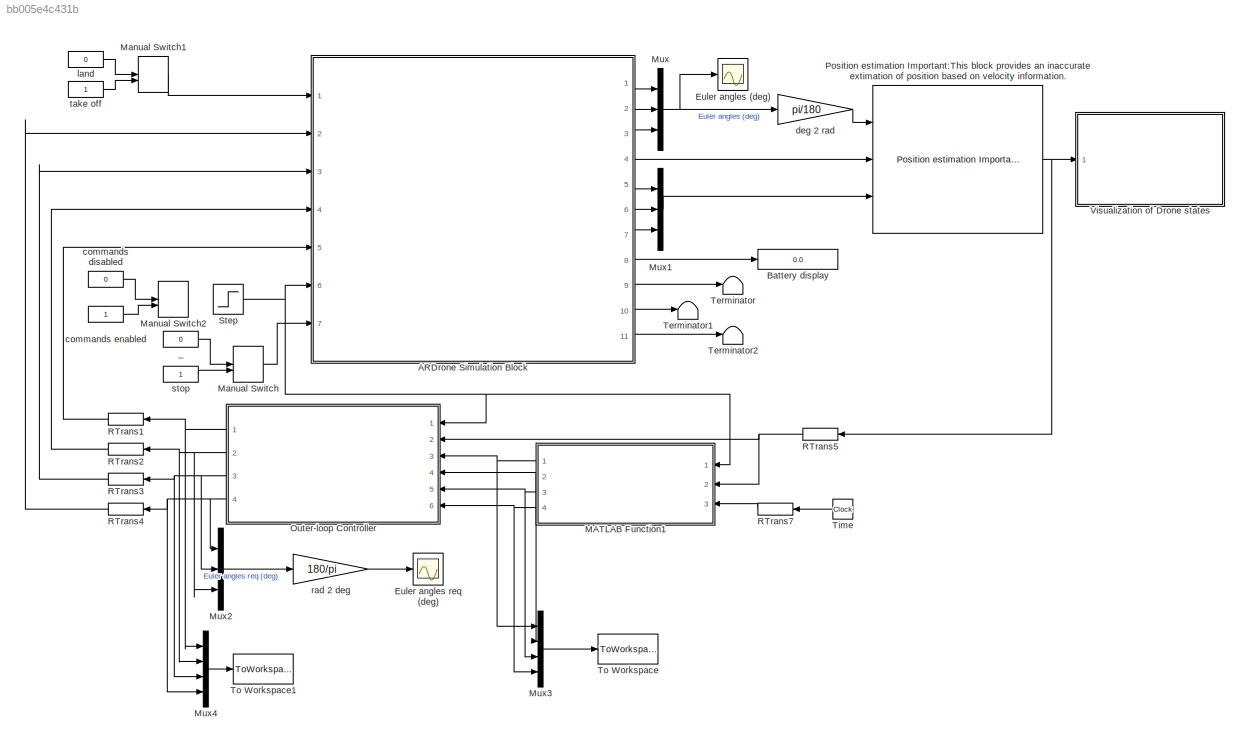
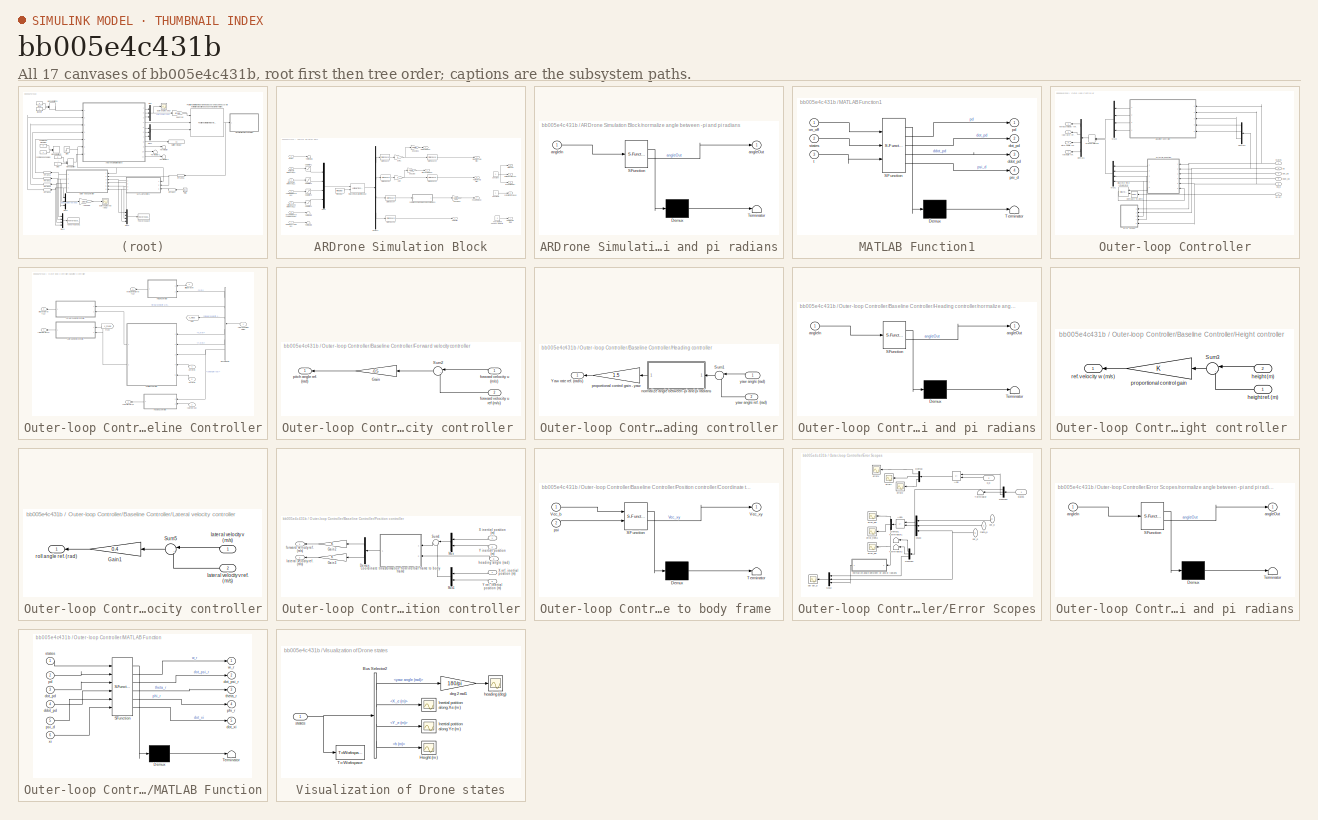
[diagram: thumbnail index - all 17 canvases of the model, root first then tree order]
MODEL slx_bb005e4c431b
KIND model
CONFIG AbsTol = auto
CONFIG EnableMultiTasking = on
CONFIG FixedStep = simDT
CONFIG MaxStep = auto
CONFIG MinStep = auto
CONFIG RelTol = 1e-3
CONFIG SampleTimeConstraint = Unconstrained
CONFIG Solver = ode1
CONFIG SolverName = ode1
CONFIG StartTime = 0.0
CONFIG StopTime = 200
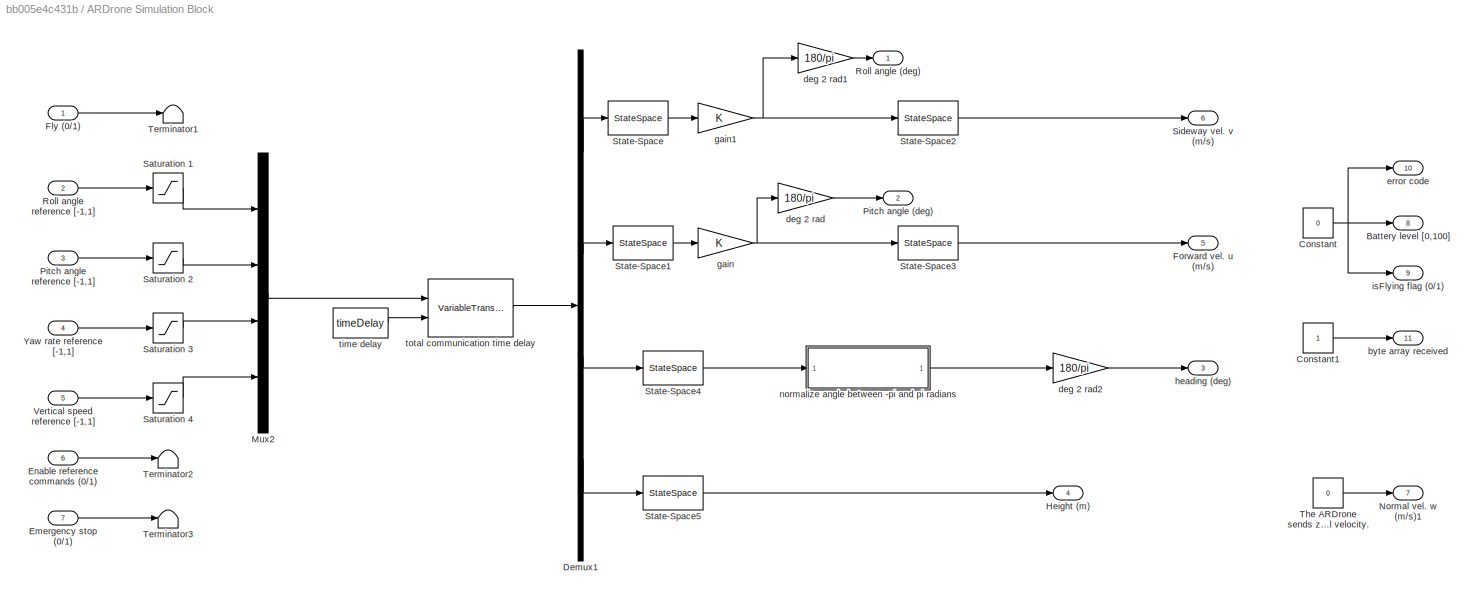
BLOCK [SubSystem] ARDrone Simulation Block
  AncestorBlock = ARBlocks/ARDrone Simulation Block
  Ports = [7, 11]
  RequestExecContextInheritance = off
BLOCK [Outport] ARDrone Simulation Block/Battery level [0,100]
  Port = 8
  VectorParamsAs1DForOutWhenUnconnected = off
BLOCK [Constant] ARDrone Simulation Block/Constant
  Value = 0
BLOCK [Constant] ARDrone Simulation Block/Constant1
BLOCK [Demux] ARDrone Simulation Block/Demux1
  Outputs = [1,1,1,1]
  Ports = [1, 4]
BLOCK [Inport] ARDrone Simulation Block/Emergency stop (0//1)
  Port = 7
BLOCK [Inport] ARDrone Simulation Block/Enable reference commands (0//1)
  Port = 6
BLOCK [Inport] ARDrone Simulation Block/Fly (0//1)
BLOCK [Outport] ARDrone Simulation Block/Forward vel. u (m//s)
  Port = 5
  VectorParamsAs1DForOutWhenUnconnected = off
BLOCK [Outport] ARDrone Simulation Block/Height (m)
  Port = 4
  VectorParamsAs1DForOutWhenUnconnected = off
BLOCK [Mux] ARDrone Simulation Block/Mux2
  DisplayOption = bar
  Inputs = [1,1,1,1]
  Ports = [4, 1]
BLOCK [Outport] ARDrone Simulation Block/Normal vel. w (m//s)1
  Port = 7
  VectorParamsAs1DForOutWhenUnconnected = off
BLOCK [Outport] ARDrone Simulation Block/Pitch angle (deg)
  Port = 2
  VectorParamsAs1DForOutWhenUnconnected = off
BLOCK [Inport] ARDrone Simulation Block/Pitch angle reference [-1,1]
  Port = 3
BLOCK [Outport] ARDrone Simulation Block/Roll angle (deg)
  VectorParamsAs1DForOutWhenUnconnected = off
BLOCK [Inport] ARDrone Simulation Block/Roll angle reference [-1,1]
  Port = 2
BLOCK [Saturate] ARDrone Simulation Block/Saturation 1
  LowerLimit = -1
  UpperLimit = 1
BLOCK [Saturate] ARDrone Simulation Block/Saturation 2
  LowerLimit = -1
  UpperLimit = 1
BLOCK [Saturate] ARDrone Simulation Block/Saturation 3
  LowerLimit = -1
  UpperLimit = 1
BLOCK [Saturate] ARDrone Simulation Block/Saturation 4
  LowerLimit = -1
  UpperLimit = 1
BLOCK [Outport] ARDrone Simulation Block/Sideway vel. v (m//s)
  Port = 6
  VectorParamsAs1DForOutWhenUnconnected = off
BLOCK [StateSpace] ARDrone Simulation Block/State-Space
  A = ssRoll.a
  B = ssRoll.b
  C = ssRoll.c
  D = ssRoll.d
  InitialCondition = 0
  Ports = [1, 1]
BLOCK [StateSpace] ARDrone Simulation Block/State-Space1
  A = ssPitch.a
  B = ssPitch.b
  C = ssPitch.c
  D = ssPitch.d
  InitialCondition = 0
  Ports = [1, 1]
BLOCK [StateSpace] ARDrone Simulation Block/State-Space2
  A = ssRoll2V.a
  B = ssRoll2V.b
  C = ssRoll2V.c
  D = ssRoll2V.d
  InitialCondition = 0
  Ports = [1, 1]
BLOCK [StateSpace] ARDrone Simulation Block/State-Space3
  A = ssPitch2U.a
  B = ssPitch2U.b
  C = ssPitch2U.c
  D = ssPitch2U.d
  InitialCondition = 0
  Ports = [1, 1]
BLOCK [StateSpace] ARDrone Simulation Block/State-Space4
  A = ssYaw.a
  B = ssYaw.b
  C = ssYaw.c
  D = ssYaw.d
  InitialCondition = 0
  Ports = [1, 1]
BLOCK [StateSpace] ARDrone Simulation Block/State-Space5
  A = ssH.a
  B = ssH.b
  C = ssH.c
  D = ssH.d
  InitialCondition = 0
  Ports = [1, 1]
BLOCK [Terminator] ARDrone Simulation Block/Terminator1
BLOCK [Terminator] ARDrone Simulation Block/Terminator2
BLOCK [Terminator] ARDrone Simulation Block/Terminator3
BLOCK [Constant] ARDrone Simulation Block/The ARDrone sends zero for the vertical velocity. 
  Value = 0
BLOCK [Inport] ARDrone Simulation Block/Vertical speed reference [-1,1]
  Port = 5
BLOCK [Inport] ARDrone Simulation Block/Yaw rate reference [-1,1]
  Port = 4
BLOCK [Outport] ARDrone Simulation Block/byte array received
  Port = 11
  VectorParamsAs1DForOutWhenUnconnected = off
BLOCK [Gain] ARDrone Simulation Block/deg 2 rad
  Gain = 180/pi
BLOCK [Gain] ARDrone Simulation Block/deg 2 rad1
  Gain = 180/pi
BLOCK [Gain] ARDrone Simulation Block/deg 2 rad2
  Gain = 180/pi
BLOCK [Outport] ARDrone Simulation Block/error code
  Port = 10
  VectorParamsAs1DForOutWhenUnconnected = off
BLOCK [Gain] ARDrone Simulation Block/gain
BLOCK [Gain] ARDrone Simulation Block/gain1
BLOCK [Outport] ARDrone Simulation Block/heading  (deg)
  Port = 3
  VectorParamsAs1DForOutWhenUnconnected = off
BLOCK [Outport] ARDrone Simulation Block/isFlying flag (0//1)
  Port = 9
  VectorParamsAs1DForOutWhenUnconnected = off
BLOCK [SubSystem] ARDrone Simulation Block/normalize angle between -pi and pi radians
  ErrorFcn = Stateflow.Translate.translate
  NameLocation = top
  PermitHierarchicalResolution = ExplicitOnly
  Ports = [1, 1]
  RequestExecContextInheritance = off
  SFBlockType = MATLAB Function
  TreatAsAtomicUnit = on
BLOCK [Demux] ARDrone Simulation Block/normalize angle between -pi and pi radians/ Demux 
  Outputs = 1
  Ports = [1, 1]
BLOCK [S-Function] ARDrone Simulation Block/normalize angle between -pi and pi radians/ SFunction 
  EnableBusSupport = on
  FunctionName = sf_sfun
  PortCounts = [1 2]
  Ports = [1, 2]
  SFcnIsStateOwnerBlock = off
  SFunctionDeploymentMode = off
  Tag = Stateflow S-Function 5
BLOCK [Terminator] ARDrone Simulation Block/normalize angle between -pi and pi radians/ Terminator 
BLOCK [Inport] ARDrone Simulation Block/normalize angle between -pi and pi radians/angleIn
BLOCK [Outport] ARDrone Simulation Block/normalize angle between -pi and pi radians/angleOut
  VectorParamsAs1DForOutWhenUnconnected = off
BLOCK [Constant] ARDrone Simulation Block/time delay
  Value = timeDelay
BLOCK [VariableTransportDelay] ARDrone Simulation Block/total communication time delay
  InitialOutput = [0 0 0 0]
  MaximumDelay = 10
  MaximumPoints = 4096
  Ports = [2, 1]
BLOCK [Display] Battery display
  Decimation = 1
  Ports = [1]
BLOCK [Scope] Euler angles (deg)
  Floating = off
  NumInputPorts = 1
  Ports = [1]
  ScopeSpecificationString = Simulink.scopes.TimeScopeBlockCfg('CurrentConfiguration', extmgr.ConfigurationSet(extmgr.Configuration('Core','General UI',true),extmgr.Configuration('Core','Source UI',true),extmgr.Configuration('Sources','WiredSimulink',true,'DataLoggingSaveFormat','StructureWithTime','DataLoggingMaxPoints','500000','DataLoggingLimitDataPoints',true,'DataLoggingDecimation','1','DataLoggingDecimateData',true),ext...<+1845ch>
BLOCK [Scope] Euler angles req (deg)
  Floating = off
  NumInputPorts = 1
  Ports = [1]
  ScopeSpecificationString = Simulink.scopes.TimeScopeBlockCfg('CurrentConfiguration', extmgr.ConfigurationSet(extmgr.Configuration('Core','General UI',true),extmgr.Configuration('Core','Source UI',true),extmgr.Configuration('Sources','WiredSimulink',true,'DataLoggingSaveFormat','StructureWithTime','DataLoggingMaxPoints','500000','DataLoggingLimitDataPoints',true,'DataLoggingDecimation','1','DataLoggingDecimateData',true,'Dat...<+1856ch>
BLOCK [SubSystem] MATLAB Function1
  ErrorFcn = Stateflow.Translate.translate
  NameLocation = top
  PermitHierarchicalResolution = ExplicitOnly
  Ports = [3, 4]
  RequestExecContextInheritance = off
  SFBlockType = MATLAB Function
  SystemSampleTime = FMS.Ts
  TreatAsAtomicUnit = on
BLOCK [Demux] MATLAB Function1/ Demux 
  Outputs = 1
  Ports = [1, 1]
BLOCK [S-Function] MATLAB Function1/ SFunction 
  EnableBusSupport = on
  FunctionName = sf_sfun
  PortCounts = [3 5]
  Ports = [3, 5]
  SFcnIsStateOwnerBlock = off
  SFunctionDeploymentMode = off
  Tag = Stateflow S-Function 1
BLOCK [Terminator] MATLAB Function1/ Terminator 
BLOCK [Outport] MATLAB Function1/ddot_pd
  Port = 3
  VectorParamsAs1DForOutWhenUnconnected = off
BLOCK [Outport] MATLAB Function1/dot_pd
  Port = 2
  VectorParamsAs1DForOutWhenUnconnected = off
BLOCK [Inport] MATLAB Function1/on_off
BLOCK [Outport] MATLAB Function1/pd
  VectorParamsAs1DForOutWhenUnconnected = off
BLOCK [Outport] MATLAB Function1/psi_d
  Port = 4
  VectorParamsAs1DForOutWhenUnconnected = off
BLOCK [Inport] MATLAB Function1/states
  Port = 2
BLOCK [Inport] MATLAB Function1/t
  Port = 3
BLOCK [ManualSwitch] Manual Switch
BLOCK [ManualSwitch] Manual Switch1
  CurrentSetting = 0
BLOCK [ManualSwitch] Manual Switch2
  CurrentSetting = 0
  NameLocation = top
BLOCK [Mux] Mux
  DisplayOption = bar
  Inputs = 3
  Ports = [3, 1]
BLOCK [Mux] Mux1
  DisplayOption = bar
  Inputs = 3
  Ports = [3, 1]
BLOCK [Mux] Mux2
  DisplayOption = bar
  Inputs = 3
  Ports = [3, 1]
BLOCK [Mux] Mux3
  DisplayOption = bar
  Ports = [4, 1]
BLOCK [Mux] Mux4
  DisplayOption = bar
  Ports = [4, 1]
BLOCK [SubSystem] Outer-loop Controller
  Ports = [6, 4]
  RequestExecContextInheritance = off
BLOCK [SubSystem] Outer-loop Controller/Baseline Controller
  AncestorBlock = ARBlocks/Baseline Controller
  Ports = [5, 4]
  RequestExecContextInheritance = off
BLOCK [Inport] Outer-loop Controller/Baseline Controller/ARDrone states  states 
BLOCK [BusSelector] Outer-loop Controller/Baseline Controller/Bus Selector
  NameLocation = top
  OutputSignals = h (m),forward velocity- u (m/s),sideward velocity - v (m/s),X_e (m),Y_e (m),yaw angle (rad)
  Ports = [1, 6]
BLOCK [SubSystem] Outer-loop Controller/Baseline Controller/Forward velocity controller 
  NameLocation = top
  Ports = [2, 1]
  RequestExecContextInheritance = off
BLOCK [Gain] Outer-loop Controller/Baseline Controller/Forward velocity controller /Gain
  Gain = -0.5
  NameLocation = top
BLOCK [Sum] Outer-loop Controller/Baseline Controller/Forward velocity controller /Sum2
  Inputs = |-+
  NameLocation = top
  Ports = [2, 1]
BLOCK [Inport] Outer-loop Controller/Baseline Controller/Forward velocity controller /forward velocity u (m//s)
BLOCK [Inport] Outer-loop Controller/Baseline Controller/Forward velocity controller /forward velocity u ref (m//s)
  Port = 2
BLOCK [Outport] Outer-loop Controller/Baseline Controller/Forward velocity controller /pitch angle ref. (rad)
  VectorParamsAs1DForOutWhenUnconnected = off
BLOCK [From] Outer-loop Controller/Baseline Controller/From
  GotoTag = v_meas
  NameLocation = top
BLOCK [Goto] Outer-loop Controller/Baseline Controller/Goto
  GotoTag = v_meas
  NameLocation = top
BLOCK [SubSystem] Outer-loop Controller/Baseline Controller/Heading controller
  NameLocation = top
  Ports = [2, 1]
  RequestExecContextInheritance = off
BLOCK [Sum] Outer-loop Controller/Baseline Controller/Heading controller/Sum1
  Inputs = |-+
  NameLocation = top
  Ports = [2, 1]
BLOCK [Outport] Outer-loop Controller/Baseline Controller/Heading controller/Yaw rate ref. (rad//s)
  VectorParamsAs1DForOutWhenUnconnected = off
BLOCK [SubSystem] Outer-loop Controller/Baseline Controller/Heading controller/normalize angle between -pi and pi radians
  ErrorFcn = Stateflow.Translate.translate
  NameLocation = top
  PermitHierarchicalResolution = ExplicitOnly
  Ports = [1, 1]
  RequestExecContextInheritance = off
  SFBlockType = MATLAB Function
  TreatAsAtomicUnit = on
BLOCK [Demux] Outer-loop Controller/Baseline Controller/Heading controller/normalize angle between -pi and pi radians/ Demux 
  Outputs = 1
  Ports = [1, 1]
BLOCK [S-Function] Outer-loop Controller/Baseline Controller/Heading controller/normalize angle between -pi and pi radians/ SFunction 
  EnableBusSupport = on
  FunctionName = sf_sfun
  PortCounts = [1 2]
  Ports = [1, 2]
  SFcnIsStateOwnerBlock = off
  SFunctionDeploymentMode = off
  Tag = Stateflow S-Function 4
BLOCK [Terminator] Outer-loop Controller/Baseline Controller/Heading controller/normalize angle between -pi and pi radians/ Terminator 
BLOCK [Inport] Outer-loop Controller/Baseline Controller/Heading controller/normalize angle between -pi and pi radians/angleIn
BLOCK [Outport] Outer-loop Controller/Baseline Controller/Heading controller/normalize angle between -pi and pi radians/angleOut
  VectorParamsAs1DForOutWhenUnconnected = off
BLOCK [Gain] Outer-loop Controller/Baseline Controller/Heading controller/proportional control gain - yaw
  Gain = 1.5
  NameLocation = top
BLOCK [Inport] Outer-loop Controller/Baseline Controller/Heading controller/yaw angle (rad)
BLOCK [Inport] Outer-loop Controller/Baseline Controller/Heading controller/yaw angle ref. (rad)
  Port = 2
BLOCK [SubSystem] Outer-loop Controller/Baseline Controller/Height controller 
  NameLocation = top
  Ports = [2, 1]
  RequestExecContextInheritance = off
BLOCK [Sum] Outer-loop Controller/Baseline Controller/Height controller /Sum3
  Inputs = |-+
  NameLocation = top
  Ports = [2, 1]
BLOCK [Inport] Outer-loop Controller/Baseline Controller/Height controller /height (m)
  Port = 2
BLOCK [Inport] Outer-loop Controller/Baseline Controller/Height controller /height ref. (m)
BLOCK [Gain] Outer-loop Controller/Baseline Controller/Height controller /proportional control gain
  NameLocation = top
BLOCK [Outport] Outer-loop Controller/Baseline Controller/Height controller /ref. velocity w (m//s)
  VectorParamsAs1DForOutWhenUnconnected = off
BLOCK [SubSystem] Outer-loop Controller/Baseline Controller/Lateral velocity controller
  Ports = [2, 1]
  RequestExecContextInheritance = off
BLOCK [Gain] Outer-loop Controller/Baseline Controller/Lateral velocity controller/Gain1
  Gain = 0.4
  NameLocation = top
BLOCK [Sum] Outer-loop Controller/Baseline Controller/Lateral velocity controller/Sum5
  Inputs = |-+
  NameLocation = top
  Ports = [2, 1]
BLOCK [Inport] Outer-loop Controller/Baseline Controller/Lateral velocity controller/lateral velocity v (m//s)
BLOCK [Inport] Outer-loop Controller/Baseline Controller/Lateral velocity controller/lateral velocity v ref. (m//s)
  Port = 2
BLOCK [Outport] Outer-loop Controller/Baseline Controller/Lateral velocity controller/roll angle ref. (rad)
  VectorParamsAs1DForOutWhenUnconnected = off
BLOCK [SubSystem] Outer-loop Controller/Baseline Controller/Position controller
  NameLocation = top
  Ports = [5, 2]
  RequestExecContextInheritance = off
BLOCK [SubSystem] Outer-loop Controller/Baseline Controller/Position controller/Coordinate trnasformation from inertial frame to body frame 
  ErrorFcn = Stateflow.Translate.translate
  NameLocation = top
  PermitHierarchicalResolution = ExplicitOnly
  Ports = [2, 1]
  RequestExecContextInheritance = off
  SFBlockType = MATLAB Function
  TreatAsAtomicUnit = on
BLOCK [Demux] Outer-loop Controller/Baseline Controller/Position controller/Coordinate trnasformation from inertial frame to body frame / Demux 
  Outputs = 1
  Ports = [1, 1]
BLOCK [S-Function] Outer-loop Controller/Baseline Controller/Position controller/Coordinate trnasformation from inertial frame to body frame / SFunction 
  EnableBusSupport = on
  FunctionName = sf_sfun
  PortCounts = [2 2]
  Ports = [2, 2]
  SFcnIsStateOwnerBlock = off
  SFunctionDeploymentMode = off
  Tag = Stateflow S-Function 7
BLOCK [Terminator] Outer-loop Controller/Baseline Controller/Position controller/Coordinate trnasformation from inertial frame to body frame / Terminator 
BLOCK [Inport] Outer-loop Controller/Baseline Controller/Position controller/Coordinate trnasformation from inertial frame to body frame /Vec_b
BLOCK [Outport] Outer-loop Controller/Baseline Controller/Position controller/Coordinate trnasformation from inertial frame to body frame /Vec_xy
  VectorParamsAs1DForOutWhenUnconnected = off
BLOCK [Inport] Outer-loop Controller/Baseline Controller/Position controller/Coordinate trnasformation from inertial frame to body frame /psi
  Port = 2
BLOCK [Demux] Outer-loop Controller/Baseline Controller/Position controller/Demux
  NameLocation = top
  Outputs = 2
  Ports = [1, 2]
BLOCK [Gain] Outer-loop Controller/Baseline Controller/Position controller/Gain2
  NameLocation = top
BLOCK [Gain] Outer-loop Controller/Baseline Controller/Position controller/Gain3
  NameLocation = top
BLOCK [Mux] Outer-loop Controller/Baseline Controller/Position controller/Mux
  DisplayOption = bar
  Inputs = 2
  NameLocation = top
  Ports = [2, 1]
BLOCK [Mux] Outer-loop Controller/Baseline Controller/Position controller/Mux1
  DisplayOption = bar
  Inputs = 2
  NameLocation = top
  Ports = [2, 1]
BLOCK [Sum] Outer-loop Controller/Baseline Controller/Position controller/Sum4
  Inputs = |-+
  NameLocation = top
  Ports = [2, 1]
BLOCK [Inport] Outer-loop Controller/Baseline Controller/Position controller/X inertial position (m)
BLOCK [Inport] Outer-loop Controller/Baseline Controller/Position controller/X ref. inertial position (m)
  Port = 4
BLOCK [Inport] Outer-loop Controller/Baseline Controller/Position controller/Y inertial position (m)
  Port = 2
BLOCK [Inport] Outer-loop Controller/Baseline Controller/Position controller/Y ref. inertial position (m)
  Port = 5
BLOCK [Outport] Outer-loop Controller/Baseline Controller/Position controller/forward velocity ref. (m//s)
  VectorParamsAs1DForOutWhenUnconnected = off
BLOCK [Inport] Outer-loop Controller/Baseline Controller/Position controller/heading angle (rad)
  Port = 3
BLOCK [Outport] Outer-loop Controller/Baseline Controller/Position controller/lateral velocity ref. (m//s)
  Port = 2
  VectorParamsAs1DForOutWhenUnconnected = off
BLOCK [Inport] Outer-loop Controller/Baseline Controller/Xe ref (m)
  Port = 4
BLOCK [Inport] Outer-loop Controller/Baseline Controller/Ye ref (m)
  Port = 5
BLOCK [Inport] Outer-loop Controller/Baseline Controller/altitude ref. (m)
  Port = 3
BLOCK [Outport] Outer-loop Controller/Baseline Controller/pitch angle ref. [-1,1]
  Port = 3
  VectorParamsAs1DForOutWhenUnconnected = off
BLOCK [Outport] Outer-loop Controller/Baseline Controller/roll angle ref. [-1,1]
  Port = 4
  VectorParamsAs1DForOutWhenUnconnected = off
BLOCK [Outport] Outer-loop Controller/Baseline Controller/vertical velocity ref. [-1,1]
  VectorParamsAs1DForOutWhenUnconnected = off
BLOCK [Outport] Outer-loop Controller/Baseline Controller/yaw rate ref [-1,1]
  Port = 2
  VectorParamsAs1DForOutWhenUnconnected = off
BLOCK [Inport] Outer-loop Controller/Baseline Controller/yaw ref. (rad)
  Port = 2
BLOCK [Reference] Outer-loop Controller/Compare To Zero  REF=simulink/Logic and Bit
Operations/Compare
To Zero
  Ports = [1, 1]
  SourceBlock = simulink/Logic and Bit\nOperations/Compare\nTo Zero
  SourceProductBaseCode = SL
  SourceType = Compare To Zero
BLOCK [Demux] Outer-loop Controller/Demux1
  Outputs = [1,1,1,1]
  Ports = [1, 4]
BLOCK [Demux] Outer-loop Controller/Demux3
  Outputs = [1,1,1]
  Ports = [1, 3]
BLOCK [DiscreteIntegrator] Outer-loop Controller/Discrete-Time Integrator
  ExternalReset = level
  ICPrevOutput = DiscIntNeverNeededParam
  ICPrevScaledInput = DiscIntNeverNeededParam
  InitialCondition = [0;0;0;0]
  InitialConditionSetting = Auto
  LowerSaturationLimit = -10
  Ports = [2, 1]
  SampleTime = FMS.Ts
  UpperSaturationLimit = 10
BLOCK [SubSystem] Outer-loop Controller/Error Scopes
  Ports = [5]
  RequestExecContextInheritance = off
BLOCK [Sum] Outer-loop Controller/Error Scopes/Add
  IconShape = rectangular
  Inputs = +-
  NameLocation = top
  Ports = [2, 1]
BLOCK [Sum] Outer-loop Controller/Error Scopes/Add1
  IconShape = rectangular
  Inputs = +-
  NameLocation = top
  Ports = [2, 1]
BLOCK [Demux] Outer-loop Controller/Error Scopes/Demux
  Outputs = 3
  Ports = [1, 3]
BLOCK [Demux] Outer-loop Controller/Error Scopes/Demux1
  Outputs = [1,1,1]
  Ports = [1, 3]
BLOCK [Demux] Outer-loop Controller/Error Scopes/Demux2
  Outputs = [1,1,1]
  Ports = [1, 3]
BLOCK [Demux] Outer-loop Controller/Error Scopes/Demux3
  Outputs = [3,3,3]
  Ports = [1, 3]
BLOCK [Mux] Outer-loop Controller/Error Scopes/Mux2
  DisplayOption = bar
  Inputs = [1,1,1]
  NameLocation = top
  Ports = [3, 1]
BLOCK [Mux] Outer-loop Controller/Error Scopes/Mux3
  DisplayOption = bar
  Inputs = [1,1,1]
  NameLocation = top
  Ports = [3, 1]
BLOCK [Terminator] Outer-loop Controller/Error Scopes/Terminator
BLOCK [Terminator] Outer-loop Controller/Error Scopes/Terminator1
BLOCK [Terminator] Outer-loop Controller/Error Scopes/Terminator2
BLOCK [Scope] Outer-loop Controller/Error Scopes/error_phi
  Floating = off
  NameLocation = top
  NumInputPorts = 1
  Ports = [1]
  ScopeSpecificationString = Simulink.scopes.TimeScopeBlockCfg('CurrentConfiguration', extmgr.ConfigurationSet(extmgr.Configuration('Core','General UI',true),extmgr.Configuration('Core','Source UI',true),extmgr.Configuration('Sources','WiredSimulink',true,'DataLoggingSaveFormat','StructureWithTime','DataLoggingMaxPoints','500000','DataLoggingLimitDataPoints',true,'DataLoggingDecimation','1','DataLoggingDecimateData',true,'Dat...<+1731ch>
BLOCK [Scope] Outer-loop Controller/Error Scopes/error_psi
  Floating = off
  NameLocation = top
  NumInputPorts = 1
  Ports = [1]
  ScopeSpecificationString = Simulink.scopes.TimeScopeBlockCfg('CurrentConfiguration', extmgr.ConfigurationSet(extmgr.Configuration('Core','General UI',true),extmgr.Configuration('Core','Source UI',true),extmgr.Configuration('Sources','WiredSimulink',true,'DataLoggingSaveFormat','StructureWithTime','DataLoggingMaxPoints','500000','DataLoggingLimitDataPoints',true,'DataLoggingDecimation','1','DataLoggingDecimateData',true,'Dat...<+1734ch>
BLOCK [Scope] Outer-loop Controller/Error Scopes/error_theta
  Floating = off
  NameLocation = top
  NumInputPorts = 1
  Ports = [1]
  ScopeSpecificationString = Simulink.scopes.TimeScopeBlockCfg('CurrentConfiguration', extmgr.ConfigurationSet(extmgr.Configuration('Core','General UI',true),extmgr.Configuration('Core','Source UI',true),extmgr.Configuration('Sources','WiredSimulink',true,'DataLoggingSaveFormat','StructureWithTime','DataLoggingMaxPoints','500000','DataLoggingLimitDataPoints',true,'DataLoggingDecimation','1','DataLoggingDecimateData',true,'Dat...<+1731ch>
BLOCK [Scope] Outer-loop Controller/Error Scopes/errorx
  Floating = off
  NameLocation = top
  NumInputPorts = 1
  Ports = [1]
  ScopeSpecificationString = Simulink.scopes.TimeScopeBlockCfg('CurrentConfiguration', extmgr.ConfigurationSet(extmgr.Configuration('Core','General UI',true),extmgr.Configuration('Core','Source UI',true),extmgr.Configuration('Sources','WiredSimulink',true,'DataLoggingSaveFormat','StructureWithTime','DataLoggingMaxPoints','500000','DataLoggingLimitDataPoints',true,'DataLoggingDecimation','1','DataLoggingDecimateData',true,'Dat...<+1732ch>
BLOCK [Scope] Outer-loop Controller/Error Scopes/errory
  Floating = off
  NameLocation = top
  NumInputPorts = 1
  Ports = [1]
  ScopeSpecificationString = Simulink.scopes.TimeScopeBlockCfg('CurrentConfiguration', extmgr.ConfigurationSet(extmgr.Configuration('Core','General UI',true),extmgr.Configuration('Core','Source UI',true),extmgr.Configuration('Sources','WiredSimulink',true,'DataLoggingSaveFormat','StructureWithTime','DataLoggingMaxPoints','500000','DataLoggingLimitDataPoints',true,'DataLoggingDecimation','1','DataLoggingDecimateData',true,'Dat...<+1744ch>
BLOCK [Scope] Outer-loop Controller/Error Scopes/errorz
  Floating = off
  NameLocation = top
  NumInputPorts = 1
  Ports = [1]
  ScopeSpecificationString = Simulink.scopes.TimeScopeBlockCfg('CurrentConfiguration', extmgr.ConfigurationSet(extmgr.Configuration('Core','General UI',true),extmgr.Configuration('Core','Source UI',true),extmgr.Configuration('Sources','WiredSimulink',true,'DataLoggingSaveFormat','StructureWithTime','DataLoggingMaxPoints','500000','DataLoggingLimitDataPoints',true,'DataLoggingDecimation','1','DataLoggingDecimateData',true,'Dat...<+1732ch>
BLOCK [SubSystem] Outer-loop Controller/Error Scopes/normalize angle between -pi and pi radians
  ErrorFcn = Stateflow.Translate.translate
  NameLocation = top
  PermitHierarchicalResolution = ExplicitOnly
  Ports = [1, 1]
  RequestExecContextInheritance = off
  SFBlockType = MATLAB Function
  TreatAsAtomicUnit = on
BLOCK [Demux] Outer-loop Controller/Error Scopes/normalize angle between -pi and pi radians/ Demux 
  Outputs = 1
  Ports = [1, 1]
BLOCK [S-Function] Outer-loop Controller/Error Scopes/normalize angle between -pi and pi radians/ SFunction 
  EnableBusSupport = on
  FunctionName = sf_sfun
  PortCounts = [1 2]
  Ports = [1, 2]
  SFcnIsStateOwnerBlock = off
  SFunctionDeploymentMode = off
  Tag = Stateflow S-Function 6
BLOCK [Terminator] Outer-loop Controller/Error Scopes/normalize angle between -pi and pi radians/ Terminator 
BLOCK [Inport] Outer-loop Controller/Error Scopes/normalize angle between -pi and pi radians/angleIn
BLOCK [Outport] Outer-loop Controller/Error Scopes/normalize angle between -pi and pi radians/angleOut
  VectorParamsAs1DForOutWhenUnconnected = off
BLOCK [Inport] Outer-loop Controller/Error Scopes/p_d
  Port = 2
BLOCK [Inport] Outer-loop Controller/Error Scopes/phi_d
  Port = 3
BLOCK [Scope] Outer-loop Controller/Error Scopes/psi psi_d
  Floating = off
  NameLocation = top
  NumInputPorts = 1
  Ports = [1]
  ScopeSpecificationString = Simulink.scopes.TimeScopeBlockCfg('CurrentConfiguration', extmgr.ConfigurationSet(extmgr.Configuration('Core','General UI',true),extmgr.Configuration('Core','Source UI',true),extmgr.Configuration('Sources','WiredSimulink',true,'DataLoggingSaveFormat','StructureWithTime','DataLoggingMaxPoints','500000','DataLoggingLimitDataPoints',true,'DataLoggingDecimation','1','DataLoggingDecimateData',true,'Dat...<+1822ch>
BLOCK [Inport] Outer-loop Controller/Error Scopes/psi_d
  Port = 5
BLOCK [Inport] Outer-loop Controller/Error Scopes/states
BLOCK [Inport] Outer-loop Controller/Error Scopes/theta_d
  Port = 4
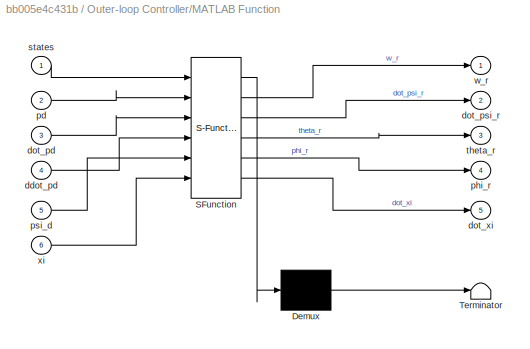
BLOCK [SubSystem] Outer-loop Controller/MATLAB Function
  ErrorFcn = Stateflow.Translate.translate
  NameLocation = top
  PermitHierarchicalResolution = ExplicitOnly
  Ports = [6, 5]
  RequestExecContextInheritance = off
  SFBlockType = MATLAB Function
  SystemSampleTime = FMS.Ts
  TreatAsAtomicUnit = on
BLOCK [Demux] Outer-loop Controller/MATLAB Function/ Demux 
  Outputs = 1
  Ports = [1, 1]
BLOCK [S-Function] Outer-loop Controller/MATLAB Function/ SFunction 
  EnableBusSupport = on
  FunctionName = sf_sfun
  PortCounts = [6 6]
  Ports = [6, 6]
  SFcnIsStateOwnerBlock = off
  SFunctionDeploymentMode = off
  Tag = Stateflow S-Function 2
BLOCK [Terminator] Outer-loop Controller/MATLAB Function/ Terminator 
BLOCK [Inport] Outer-loop Controller/MATLAB Function/ddot_pd
  Port = 4
BLOCK [Inport] Outer-loop Controller/MATLAB Function/dot_pd
  Port = 3
BLOCK [Outport] Outer-loop Controller/MATLAB Function/dot_psi_r
  Port = 2
  VectorParamsAs1DForOutWhenUnconnected = off
BLOCK [Outport] Outer-loop Controller/MATLAB Function/dot_xi
  Port = 5
  VectorParamsAs1DForOutWhenUnconnected = off
BLOCK [Inport] Outer-loop Controller/MATLAB Function/pd
  Port = 2
BLOCK [Outport] Outer-loop Controller/MATLAB Function/phi_r
  Port = 4
  VectorParamsAs1DForOutWhenUnconnected = off
BLOCK [Inport] Outer-loop Controller/MATLAB Function/psi_d
  Port = 5
BLOCK [Inport] Outer-loop Controller/MATLAB Function/states
BLOCK [Outport] Outer-loop Controller/MATLAB Function/theta_r
  Port = 3
  VectorParamsAs1DForOutWhenUnconnected = off
BLOCK [Outport] Outer-loop Controller/MATLAB Function/w_r
  VectorParamsAs1DForOutWhenUnconnected = off
BLOCK [Inport] Outer-loop Controller/MATLAB Function/xi
  Port = 6
BLOCK [ManualSwitch] Outer-loop Controller/Manual Switch3
  CurrentSetting = 0
BLOCK [Mux] Outer-loop Controller/Mux1
  DisplayOption = bar
  Inputs = [1,1,1,1]
  NameLocation = top
  Ports = [4, 1]
BLOCK [Mux] Outer-loop Controller/Mux3
  DisplayOption = bar
  Inputs = [1,1,1,1]
  NameLocation = top
  Ports = [4, 1]
BLOCK [Inport] Outer-loop Controller/ddot_pd
  Port = 5
  PortDimensions = [3 1]
BLOCK [Inport] Outer-loop Controller/dot_pd
  Port = 4
  PortDimensions = [3 1]
BLOCK [Inport] Outer-loop Controller/on off
  PortDimensions = 1
BLOCK [Inport] Outer-loop Controller/pd
  Port = 3
  PortDimensions = [3 1]
BLOCK [Outport] Outer-loop Controller/pitch angle ref.
  Port = 3
  VectorParamsAs1DForOutWhenUnconnected = off
BLOCK [Inport] Outer-loop Controller/psi_d
  Port = 6
  PortDimensions = 1
BLOCK [Outport] Outer-loop Controller/roll angle ref.
  Port = 4
  VectorParamsAs1DForOutWhenUnconnected = off
BLOCK [Inport] Outer-loop Controller/states
  Port = 2
BLOCK [Outport] Outer-loop Controller/vertical velocity ref.
  VectorParamsAs1DForOutWhenUnconnected = off
BLOCK [Outport] Outer-loop Controller/yaw rate ref.
  Port = 2
  VectorParamsAs1DForOutWhenUnconnected = off
BLOCK [Reference] Position estimation Important:This block provides an inaccurate extimation of position based on  velocity information.   REF=ARBlocks/Position estimation
Important:This block provides an 
inaccurate extimation of position 
based on  velocity information. 
  Ports = [3, 1]
  SourceBlock = ARBlocks/Position estimation\nImportant:This block provides an \ninaccurate extimation of position \nbased on  velocity information.
  SourceType = SubSystem
BLOCK [RateTransition] RTrans1
  NameLocation = top
  OutPortSampleTime = simDT
BLOCK [RateTransition] RTrans2
  NameLocation = top
  OutPortSampleTime = simDT
BLOCK [RateTransition] RTrans3
  NameLocation = top
  OutPortSampleTime = simDT
BLOCK [RateTransition] RTrans4
  NameLocation = top
  OutPortSampleTime = simDT
BLOCK [RateTransition] RTrans5
  NameLocation = top
  OutPortSampleTime = FMS.Ts
BLOCK [RateTransition] RTrans7
  NameLocation = top
  OutPortSampleTime = FMS.Ts
BLOCK [Step] Step
  SampleTime = FMS.Ts
  Time = 5
BLOCK [Terminator] Terminator
BLOCK [Terminator] Terminator1
BLOCK [Terminator] Terminator2
BLOCK [Clock] Time
  NameLocation = top
BLOCK [ToWorkspace] To Workspace
  MaxDataPoints = inf
  Ports = [1]
  SampleTime = -1
  SaveFormat = Structure With Time
  VariableName = desired
BLOCK [ToWorkspace] To Workspace1
  MaxDataPoints = inf
  Ports = [1]
  SampleTime = -1
  SaveFormat = Structure With Time
  VariableName = states_desired
BLOCK [SubSystem] Visualization of Drone states
  Ports = [1]
  RequestExecContextInheritance = off
BLOCK [BusSelector] Visualization of Drone states/Bus Selector2
  NameLocation = top
  OutputSignals = yaw angle (rad),X_e (m),Y_e (m),h (m)
  Ports = [1, 4]
BLOCK [Scope] Visualization of Drone states/Height (m)
  Floating = off
  NumInputPorts = 1
  Ports = [1]
  ScopeSpecificationString = Simulink.scopes.TimeScopeBlockCfg('CurrentConfiguration', extmgr.ConfigurationSet(extmgr.Configuration('Core','General UI',true),extmgr.Configuration('Core','Source UI',true),extmgr.Configuration('Sources','WiredSimulink',true,'DataLoggingVariableName','ScopeData5','DataLoggingSaveFormat','StructureWithTime','DataLoggingMaxPoints','500000','DataLoggingLimitDataPoints',true,'DataLoggingDecimation',...<+1778ch>
BLOCK [Scope] Visualization of Drone states/Inertial potition along Xe (m)
  Floating = off
  NumInputPorts = 1
  Ports = [1]
  ScopeSpecificationString = Simulink.scopes.TimeScopeBlockCfg('CurrentConfiguration', extmgr.ConfigurationSet(extmgr.Configuration('Core','General UI',true),extmgr.Configuration('Core','Source UI',true),extmgr.Configuration('Sources','WiredSimulink',true,'DataLoggingVariableName','ScopeData3','DataLoggingSaveFormat','StructureWithTime','DataLoggingMaxPoints','500000','DataLoggingLimitDataPoints',true,'DataLoggingDecimation',...<+1819ch>
BLOCK [Scope] Visualization of Drone states/Inertial potition along Ye (m)
  Floating = off
  NumInputPorts = 1
  Ports = [1]
  ScopeSpecificationString = Simulink.scopes.TimeScopeBlockCfg('CurrentConfiguration', extmgr.ConfigurationSet(extmgr.Configuration('Core','General UI',true),extmgr.Configuration('Core','Source UI',true),extmgr.Configuration('Sources','WiredSimulink',true,'DataLoggingVariableName','ScopeData4','DataLoggingSaveFormat','StructureWithTime','DataLoggingMaxPoints','500000','DataLoggingLimitDataPoints',true,'DataLoggingDecimation',...<+1794ch>
BLOCK [ToWorkspace] Visualization of Drone states/To Workspace
  MaxDataPoints = inf
  Ports = [1]
  SampleTime = -1
  SaveFormat = Structure With Time
  VariableName = states
BLOCK [Gain] Visualization of Drone states/deg 2 rad1
  Gain = 180/pi
BLOCK [Scope] Visualization of Drone states/heading (deg)
  Floating = off
  NumInputPorts = 1
  Ports = [1]
  ScopeSpecificationString = Simulink.scopes.TimeScopeBlockCfg('CurrentConfiguration', extmgr.ConfigurationSet(extmgr.Configuration('Core','General UI',true),extmgr.Configuration('Core','Source UI',true),extmgr.Configuration('Sources','WiredSimulink',true,'DataLoggingVariableName','ScopeData2','DataLoggingSaveFormat','StructureWithTime','DataLoggingMaxPoints','500000','DataLoggingLimitDataPoints',true,'DataLoggingDecimation',...<+1698ch>
BLOCK [Inport] Visualization of Drone states/states
BLOCK [Constant] _
  Value = 0
BLOCK [Constant] commands disabled
  Value = 0
BLOCK [Constant] commands enabled
BLOCK [Gain] deg 2 rad
  Gain = pi/180
BLOCK [Constant] land
  Value = 0
BLOCK [Gain] rad 2 deg
  Gain = 180/pi
BLOCK [Constant] stop
BLOCK [Constant] take off
LINE ARDrone Simulation Block:1 -> Mux:1
LINE ARDrone Simulation Block:10 -> Terminator1:1
LINE ARDrone Simulation Block:11 -> Terminator2:1
LINE ARDrone Simulation Block:2 -> Mux:2
LINE ARDrone Simulation Block:3 -> Mux:3
LINE ARDrone Simulation Block:4 -> Position estimation Important:This block provides an inaccurate extimation of position based on  velocity information. :2
LINE ARDrone Simulation Block:5 -> Mux1:1
LINE ARDrone Simulation Block:6 -> Mux1:2
LINE ARDrone Simulation Block:7 -> Mux1:3
LINE ARDrone Simulation Block:8 -> Battery display:1
LINE ARDrone Simulation Block:9 -> Terminator:1
NET MATLAB Function1:1 -> Mux3:1, Outer-loop Controller:3
NET MATLAB Function1:2 -> Mux3:2, Outer-loop Controller:4
NET MATLAB Function1:3 -> Mux3:3, Outer-loop Controller:5
NET MATLAB Function1:4 -> Mux3:4, Outer-loop Controller:6
LINE Manual Switch1:1 -> ARDrone Simulation Block:1
LINE Manual Switch:1 -> ARDrone Simulation Block:7
LINE Mux1:1 -> Position estimation Important:This block provides an inaccurate extimation of position based on  velocity information. :3
LINE Mux2:1 -> rad 2 deg:1
LINE Mux3:1 -> To Workspace:1
LINE Mux4:1 -> To Workspace1:1
NET Mux:1 -> Euler angles (deg):1, deg 2 rad:1
LINE Outer-loop Controller/Baseline Controller:1 -> Outer-loop Controller/Mux3:1
LINE Outer-loop Controller/Baseline Controller:2 -> Outer-loop Controller/Mux3:2
LINE Outer-loop Controller/Baseline Controller:3 -> Outer-loop Controller/Mux3:3
LINE Outer-loop Controller/Baseline Controller:4 -> Outer-loop Controller/Mux3:4
LINE Outer-loop Controller/Compare To Zero:1 -> Outer-loop Controller/Discrete-Time Integrator:2
LINE Outer-loop Controller/Demux1:1 -> Outer-loop Controller/vertical velocity ref.:1
LINE Outer-loop Controller/Demux1:2 -> Outer-loop Controller/yaw rate ref.:1
LINE Outer-loop Controller/Demux1:3 -> Outer-loop Controller/pitch angle ref.:1
LINE Outer-loop Controller/Demux1:4 -> Outer-loop Controller/roll angle ref.:1
LINE Outer-loop Controller/Demux3:1 -> Outer-loop Controller/Baseline Controller:4
LINE Outer-loop Controller/Demux3:2 -> Outer-loop Controller/Baseline Controller:5
LINE Outer-loop Controller/Demux3:3 -> Outer-loop Controller/Baseline Controller:3
LINE Outer-loop Controller/Discrete-Time Integrator:1 -> Outer-loop Controller/MATLAB Function:6
LINE Outer-loop Controller/Error Scopes/Add1:1 -> Outer-loop Controller/Error Scopes/Demux1:1
LINE Outer-loop Controller/Error Scopes/Add:1 -> Outer-loop Controller/Error Scopes/Demux:1
LINE Outer-loop Controller/Error Scopes/Demux1:1 -> Outer-loop Controller/Error Scopes/error_phi:1
LINE Outer-loop Controller/Error Scopes/Demux1:2 -> Outer-loop Controller/Error Scopes/error_theta:1
NET Outer-loop Controller/Error Scopes/Demux1:3 -> Outer-loop Controller/Error Scopes/error_psi:1, Outer-loop Controller/Error Scopes/normalize angle between -pi and pi radians:1
LINE Outer-loop Controller/Error Scopes/Demux2:1 -> Outer-loop Controller/Error Scopes/Terminator1:1
LINE Outer-loop Controller/Error Scopes/Demux2:2 -> Outer-loop Controller/Error Scopes/Terminator2:1
LINE Outer-loop Controller/Error Scopes/Demux2:3 -> Outer-loop Controller/Error Scopes/Mux2:1
NET Outer-loop Controller/Error Scopes/Demux3:1 -> Outer-loop Controller/Error Scopes/Add1:1, Outer-loop Controller/Error Scopes/Demux2:1
LINE Outer-loop Controller/Error Scopes/Demux3:2 -> Outer-loop Controller/Error Scopes/Terminator:1
LINE Outer-loop Controller/Error Scopes/Demux3:3 -> Outer-loop Controller/Error Scopes/Add:1
LINE Outer-loop Controller/Error Scopes/Demux:1 -> Outer-loop Controller/Error Scopes/errorx:1
LINE Outer-loop Controller/Error Scopes/Demux:2 -> Outer-loop Controller/Error Scopes/errory:1
LINE Outer-loop Controller/Error Scopes/Demux:3 -> Outer-loop Controller/Error Scopes/errorz:1
LINE Outer-loop Controller/Error Scopes/Mux2:1 -> Outer-loop Controller/Error Scopes/psi psi_d:1
LINE Outer-loop Controller/Error Scopes/Mux3:1 -> Outer-loop Controller/Error Scopes/Add1:2
LINE Outer-loop Controller/Error Scopes/normalize angle between -pi and pi radians:1 -> Outer-loop Controller/Error Scopes/Mux2:3
LINE Outer-loop Controller/Error Scopes/p_d:1 -> Outer-loop Controller/Error Scopes/Add:2
LINE Outer-loop Controller/Error Scopes/phi_d:1 -> Outer-loop Controller/Error Scopes/Mux3:1
NET Outer-loop Controller/Error Scopes/psi_d:1 -> Outer-loop Controller/Error Scopes/Mux2:2, Outer-loop Controller/Error Scopes/Mux3:3
LINE Outer-loop Controller/Error Scopes/states:1 -> Outer-loop Controller/Error Scopes/Demux3:1
LINE Outer-loop Controller/Error Scopes/theta_d:1 -> Outer-loop Controller/Error Scopes/Mux3:2
LINE Outer-loop Controller/MATLAB Function:1 -> Outer-loop Controller/Mux1:1
LINE Outer-loop Controller/MATLAB Function:2 -> Outer-loop Controller/Mux1:2
NET Outer-loop Controller/MATLAB Function:3 -> Outer-loop Controller/Error Scopes:4, Outer-loop Controller/Mux1:3
NET Outer-loop Controller/MATLAB Function:4 -> Outer-loop Controller/Error Scopes:3, Outer-loop Controller/Mux1:4
LINE Outer-loop Controller/MATLAB Function:5 -> Outer-loop Controller/Discrete-Time Integrator:1
LINE Outer-loop Controller/Manual Switch3:1 -> Outer-loop Controller/Demux1:1
LINE Outer-loop Controller/Mux1:1 -> Outer-loop Controller/Manual Switch3:2
LINE Outer-loop Controller/Mux3:1 -> Outer-loop Controller/Manual Switch3:1
LINE Outer-loop Controller/ddot_pd:1 -> Outer-loop Controller/MATLAB Function:4
LINE Outer-loop Controller/dot_pd:1 -> Outer-loop Controller/MATLAB Function:3
LINE Outer-loop Controller/on off:1 -> Outer-loop Controller/Compare To Zero:1
NET Outer-loop Controller/pd:1 -> Outer-loop Controller/Demux3:1, Outer-loop Controller/Error Scopes:2, Outer-loop Controller/MATLAB Function:2
NET Outer-loop Controller/psi_d:1 -> Outer-loop Controller/Baseline Controller:2, Outer-loop Controller/Error Scopes:5, Outer-loop Controller/MATLAB Function:5
NET Outer-loop Controller/states:1 -> Outer-loop Controller/Baseline Controller:1, Outer-loop Controller/Error Scopes:1, Outer-loop Controller/MATLAB Function:1
NET Outer-loop Controller:1 -> Mux4:1, RTrans1:1
NET Outer-loop Controller:2 -> Mux2:3, Mux4:2, RTrans2:1
NET Outer-loop Controller:3 -> Mux2:2, Mux4:3, RTrans3:1
NET Outer-loop Controller:4 -> Mux2:1, Mux4:4, RTrans4:1
NET Position estimation Important:This block provides an inaccurate extimation of position based on  velocity information. :1 -> RTrans5:1, Visualization of Drone states:1
LINE RTrans1:1 -> ARDrone Simulation Block:5
LINE RTrans2:1 -> ARDrone Simulation Block:4
LINE RTrans3:1 -> ARDrone Simulation Block:3
LINE RTrans4:1 -> ARDrone Simulation Block:2
NET RTrans5:1 -> MATLAB Function1:2, Outer-loop Controller:2
LINE RTrans7:1 -> MATLAB Function1:3
NET Step:1 -> ARDrone Simulation Block:6, MATLAB Function1:1, Outer-loop Controller:1
LINE Time:1 -> RTrans7:1
LINE Visualization of Drone states/Bus Selector2:1 -> Visualization of Drone states/deg 2 rad1:1
LINE Visualization of Drone states/Bus Selector2:2 -> Visualization of Drone states/Inertial potition along Xe (m):1
LINE Visualization of Drone states/Bus Selector2:3 -> Visualization of Drone states/Inertial potition along Ye (m):1
LINE Visualization of Drone states/Bus Selector2:4 -> Visualization of Drone states/Height (m):1
LINE Visualization of Drone states/deg 2 rad1:1 -> Visualization of Drone states/heading (deg):1
NET Visualization of Drone states/states:1 -> Visualization of Drone states/Bus Selector2:1, Visualization of Drone states/To Workspace:1
LINE _:1 -> Manual Switch:1
LINE commands disabled:1 -> Manual Switch2:1
LINE commands enabled:1 -> Manual Switch2:2
LINE deg 2 rad:1 -> Position estimation Important:This block provides an inaccurate extimation of position based on  velocity information. :1
LINE land:1 -> Manual Switch1:1
LINE rad 2 deg:1 -> Euler angles req (deg):1
LINE stop:1 -> Manual Switch:2
LINE take off:1 -> Manual Switch1:2
note: NET lines group one-source signal fan-out (src -> all destinations, sorted); 1:1 wires keep LINE
CHART MATLAB Function1 states=1 transitions=1
  STATE_LABEL 'eML_blk_kernel()'
  STATE_LABEL 'SCRIPT:\nfunction [pd, dot_pd, ddot_pd, psi_d] = desired_trajectory(on_off,states,t)\n%#codegen\n\n% ------------------------------------------------------------------------\n% inputs:\n% on_off - 1 if tracking is on, 0 if it is off\n% states - structure with state variables\n% t - current simulation time\n% \n% outputs:\n% pd - desired position\n% dot_pd - desired velocity\n% ddot_pd - desired acceleration\n% ...<+3608ch>'
CHART Outer-loop Controller/MATLAB Function states=1 transitions=1
  STATE_LABEL 'eML_blk_kernel()'
  STATE_LABEL 'SCRIPT:\nfunction [w_r, dot_psi_r, theta_r, phi_r, dot_xi] = tt_controller(states, pd, dot_pd, ddot_pd,psi_d,xi)\n%#codegen\n\n% ------------------------------------------------------------------------\n% inputs:\n% states - structure with state variables\n% pd - desired position\n% dot_pd - desired velocity\n% ddot_pt - desired acceleration\n% psi_d - desired yaw angle\n% xi - integral state (four variables...<+2275ch>'
CHART Outer-loop Controller/Baseline Controller/Heading controller/normalize angle 
between -pi and pi radians states=1 transitions=1
  STATE_LABEL 'eML_blk_kernel()'
  STATE_LABEL 'SCRIPT:\nfunction angleOut = fcn(angleIn)\n%#codegen\n\nangleOut = mod(angleIn, 2*pi) ;\nif angleOut > pi\n    angleOut = -2*pi + angleOut ; \nend\n'
CHART ARDrone Simulation Block/normalize angle 
between -pi and pi radians states=1 transitions=1
  STATE_LABEL 'eML_blk_kernel()'
  STATE_LABEL 'SCRIPT:\nfunction angleOut = fcn(angleIn)\n%#codegen\n\nangleOut = mod(angleIn, 2*pi) ;\nif angleOut > pi\n    angleOut = -2*pi + angleOut ; \nend\n'
CHART Outer-loop Controller/Error Scopes/normalize angle 
between -pi and pi radians states=1 transitions=1
  STATE_LABEL 'eML_blk_kernel()'
  STATE_LABEL 'SCRIPT:\nfunction angleOut = fcn(angleIn)\n%#codegen\n\nangleOut = mod(angleIn, 2*pi) ;\nif angleOut > pi\n    angleOut = -2*pi + angleOut ; \nend\n'
CHART Outer-loop Controller/Baseline Controller/Position controller/Coordinate trnasformation 
from inertial frame to body frame  states=1 transitions=1
  STATE_LABEL 'eML_blk_kernel()'
  STATE_LABEL 'SCRIPT:\nfunction Vec_xy  = fcn(Vec_b , psi)\n%#codegen\nT = [cos(psi) sin(psi) ; -sin(psi) cos(psi)] ; \nVec_xy = T*Vec_b(1:2,1); \n\n'
CHART  states=0 transitions=0
CHART  states=0 transitions=0
CHART  states=0 transitions=0
CHART  states=0 transitions=0
CHART  states=0 transitions=0
CHART  states=0 transitions=0
